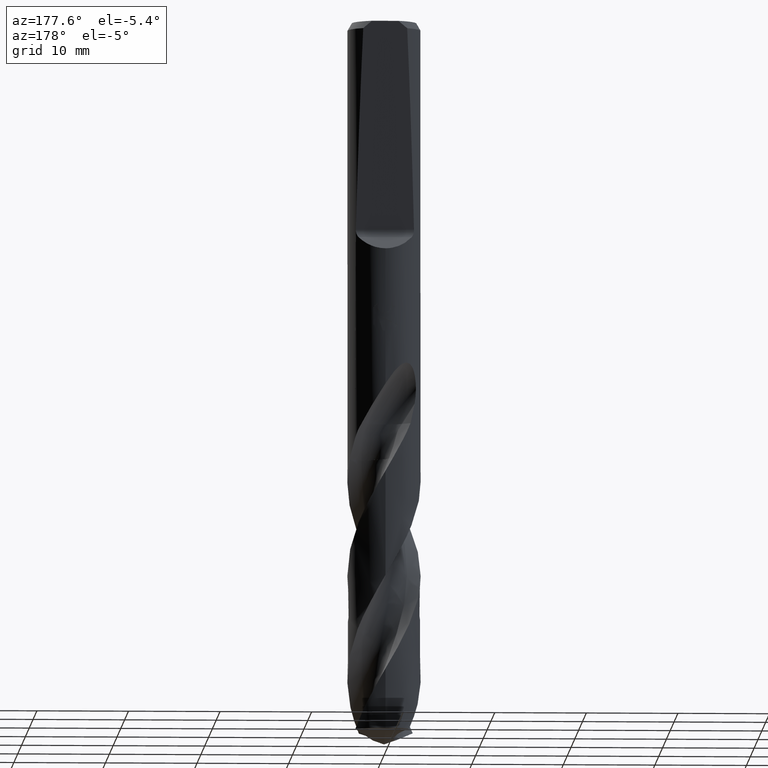
[diagram: clean part render]
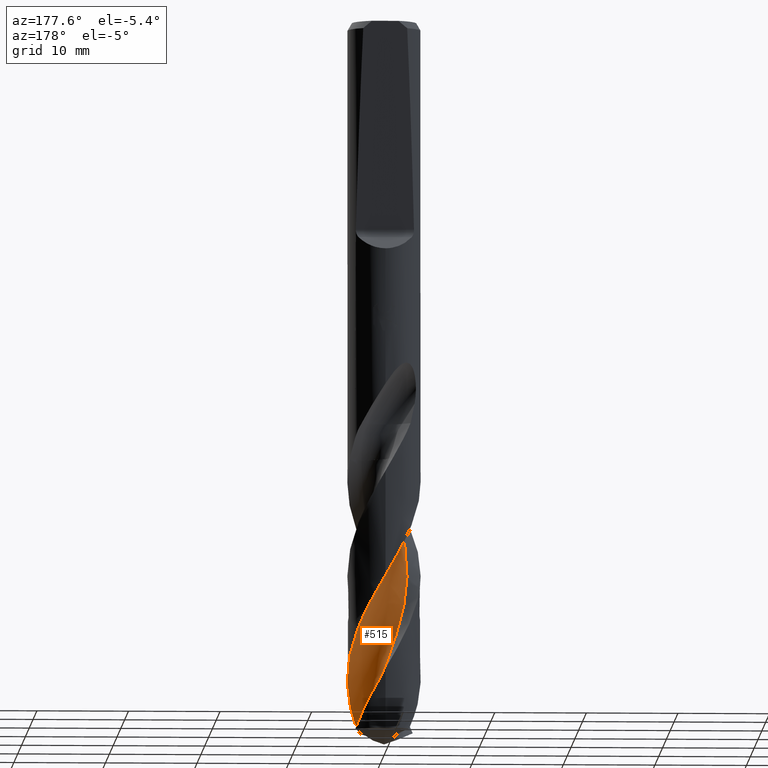
[diagram: same view with one face highlighted and labeled with its STEP entity id]
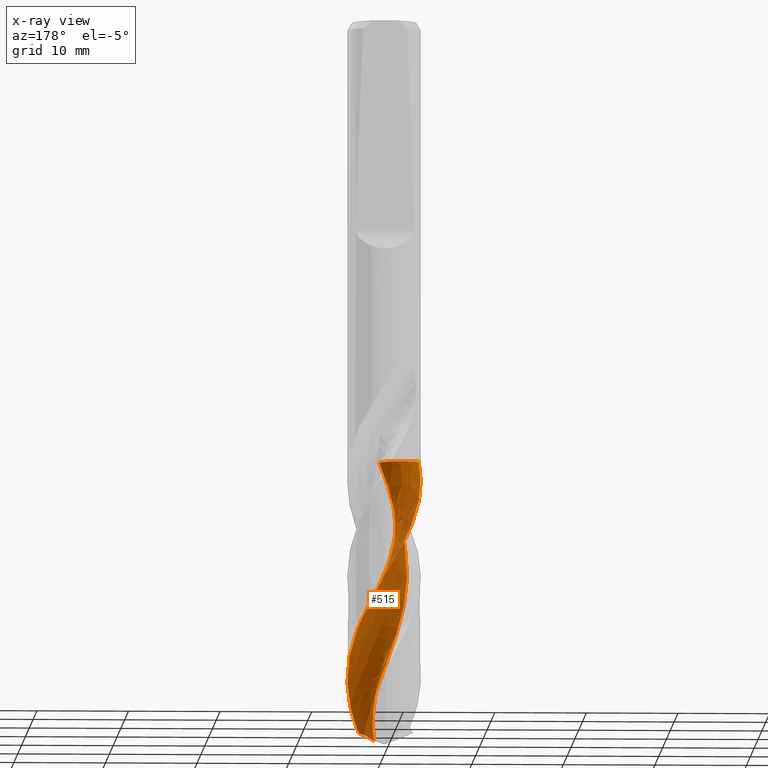
[diagram: x-ray of the same camera — body ghosted, the highlighted face saturated]
A machine part, auxiliary view. The second image highlights one B-rep face of the part: STEP entity #515.
The next image is the same camera in x-ray: the body ghosted, the highlighted face saturated — about 0% of this face is hidden behind the body in this view.
In plain terms, the highlighted face is a freeform B-spline surface patch.
Its self-contained STEP definition (entity closure, byte-faithful):
#289=EDGE_CURVE('',#501,#495,#820,.T.);
#495=VERTEX_POINT('',#1041);
#501=VERTEX_POINT('',#1048);
#515=ADVANCED_FACE('',(#1063),#1064,.F.);
#529=VERTEX_POINT('',#1079);
#531=EDGE_CURVE('',#741,#501,#1081,.T.);
#581=EDGE_CURVE('',#619,#529,#1137,.T.);
#599=EDGE_CURVE('',#495,#619,#1158,.T.);
#619=VERTEX_POINT('',#1179);
#725=EDGE_CURVE('',#529,#741,#1300,.T.);
#741=VERTEX_POINT('',#1316);
#820=B_SPLINE_CURVE_WITH_KNOTS('',3,(#1391,#1392,#1393,#1394,#1395,#1396,#1397,#1398,#1399,#1400,#1401,#1402,#1403,#1404,#1405,#1406,#1407,#1408,#1409,#1410),.UNSPECIFIED.,.F.,.F.,(4,2,2,2,2,2,2,2,2,4),(0.0,1.67084326193149,2.80818910833791,3.89072051795383,5.10747953696156,6.43539731701266,7.92770286372891,9.59178361128073,10.5946940126319,11.5968602936113),.UNSPECIFIED.);
#1041=CARTESIAN_POINT('',(2.61665020400859,-3.02541595650281,-77.5441190629352));
#1048=CARTESIAN_POINT('',(2.20358312095687,1.22999015981787,-78.0814776926935));
#1063=FACE_OUTER_BOUND('',#4596,.T.);
#1064=B_SPLINE_SURFACE_WITH_KNOTS('',3,3,((#4597,#4598,#4599,#4600,#4601,#4602,#4603,#4604,#4605,#4606,#4607,#4608,#4609,#4610,#4611,#4612,#4613,#4614,#4615,#4616,#4617,#4618,#4619,#4620,#4621,#4622,#4623,#4624,#4625,#4626,#4627,#4628,#4629,#4630,#4631,#4632,#4633,#4634,#4635,#4636,#4637,#4638,#4639,#4640,#4641,#4642),(#4643,#4644,#4645,#4646,#4647,#4648,#4649,#4650,#4651,#4652,#4653,#4654,#4655,#4656,#4657,#4658,#4659,#4660,#4661,#4662,#4663,#4664,#4665,#4666,#4667,#4668,#4669,#4670,#4671,#4672,#4673,#4674,#4675,#4676,#4677,#4678,#4679,#4680,#4681,#4682,#4683,#4684,#4685,#4686,#4687,#4688),(#4689,#4690,#4691,#4692,#4693,#4694,#4695,#4696,#4697,#4698,#4699,#4700,#4701,#4702,#4703,#4704,#4705,#4706,#4707,#4708,#4709,#4710,#4711,#4712,#4713,#4714,#4715,#4716,#4717,#4718,#4719,#4720,#4721,#4722,#4723,#4724,#4725,#4726,#4727,#4728,#4729,#4730,#4731,#4732,#4733,#4734),(#4735,#4736,#4737,#4738,#4739,#4740,#4741,#4742,#4743,#4744,#4745,#4746,#4747,#4748,#4749,#4750,#4751,#4752,#4753,#4754,#4755,#4756,#4757,#4758,#4759,#4760,#4761,#4762,#4763,#4764,#4765,#4766,#4767,#4768,#4769,#4770,#4771,#4772,#4773,#4774,#4775,#4776,#4777,#4778,#4779,#4780),(#4781,#4782,#4783,#4784,#4785,#4786,#4787,#4788,#4789,#4790,#4791,#4792,#4793,#4794,#4795,#4796,#4797,#4798,#4799,#4800,#4801,#4802,#4803,#4804,#4805,#4806,#4807,#4808,#4809,#4810,#4811,#4812,#4813,#4814,#4815,#4816,#4817,#4818,#4819,#4820,#4821,#4822,#4823,#4824,#4825,#4826),(#4827,#4828,#4829,#4830,#4831,#4832,#4833,#4834,#4835,#4836,#4837,#4838,#4839,#4840,#4841,#4842,#4843,#4844,#4845,#4846,#4847,#4848,#4849,#4850,#4851,#4852,#4853,#4854,#4855,#4856,#4857,#4858,#4859,#4860,#4861,#4862,#4863,#4864,#4865,#4866,#4867,#4868,#4869,#4870,#4871,#4872),(#4873,#4874,#4875,#4876,#4877,#4878,#4879,#4880,#4881,#4882,#4883,#4884,#4885,#4886,#4887,#4888,#4889,#4890,#4891,#4892,#4893,#4894,#4895,#4896,#4897,#4898,#4899,#4900,#4901,#4902,#4903,#4904,#4905,#4906,#4907,#4908,#4909,#4910,#4911,#4912,#4913,#4914,#4915,#4916,#4917,#4918),(#4919,#4920,#4921,#4922,#4923,#4924,#4925,#4926,#4927,#4928,#4929,#4930,#4931,#4932,#4933,#4934,#4935,#4936,#4937,#4938,#4939,#4940,#4941,#4942,#4943,#4944,#4945,#4946,#4947,#4948,#4949,#4950,#4951,#4952,#4953,#4954,#4955,#4956,#4957,#4958,#4959,#4960,#4961,#4962,#4963,#4964),(#4965,#4966,#4967,#4968,#4969,#4970,#4971,#4972,#4973,#4974,#4975,#4976,#4977,#4978,#4979,#4980,#4981,#4982,#4983,#4984,#4985,#4986,#4987,#4988,#4989,#4990,#4991,#4992,#4993,#4994,#4995,#4996,#4997,#4998,#4999,#5000,#5001,#5002,#5003,#5004,#5005,#5006,#5007,#5008,#5009,#5010),(#5011,#5012,#5013,#5014,#5015,#5016,#5017,#5018,#5019,#5020,#5021,#5022,#5023,#5024,#5025,#5026,#5027,#5028,#5029,#5030,#5031,#5032,#5033,#5034,#5035,#5036,#5037,#5038,#5039,#5040,#5041,#5042,#5043,#5044,#5045,#5046,#5047,#5048,#5049,#5050,#5051,#5052,#5053,#5054,#5055,#5056),(#5057,#5058,#5059,#5060,#5061,#5062,#5063,#5064,#5065,#5066,#5067,#5068,#5069,#5070,#5071,#5072,#5073,#5074,#5075,#5076,#5077,#5078,#5079,#5080,#5081,#5082,#5083,#5084,#5085,#5086,#5087,#5088,#5089,#5090,#5091,#5092,#5093,#5094,#5095,#5096,#5097,#5098,#5099,#5100,#5101,#5102)),.UNSPECIFIED.,.F.,.F.,.F.,(4,1,1,1,1,1,1,1,4),(4,1,2,2,2,2,2,1,2,1,2,2,2,2,2,2,2,2,2,2,2,1,2,2,4),(4.27095186761561E-018,0.39270124676232,0.785402493524641,1.17810374028696,1.57080498704928,1.9635062338116,2.35620748057392,2.74890872733624,3.14160997409856),(0.0,0.702977865865361,1.40595573173072,2.10893359759608,2.81191146346144,4.21786719519216,5.62382292692289,7.02977865865361,8.43573439038433,9.84169012211505,11.2476458538458,14.0595573173072,16.8714687807687,19.6833802442301,22.4952917076915,25.307203171153,28.1191146346144,30.9310260980759,33.7429375615373,36.5548490249988,39.3667604884602,40.7727162201909,42.1786719519216,43.5846276836524,44.9905834153831),.UNSPECIFIED.);
#1079=CARTESIAN_POINT('',(-3.82569391059703,-1.16758994139769,-47.905));
#1081=B_SPLINE_CURVE_WITH_KNOTS('',3,(#5418,#5419,#5420,#5421,#5422,#5423,#5424,#5425,#5426,#5427,#5428,#5429,#5430,#5431,#5432,#5433,#5434,#5435,#5436,#5437,#5438,#5439,#5440,#5441,#5442,#5443,#5444,#5445,#5446,#5447,#5448,#5449,#5450,#5451,#5452,#5453,#5454,#5455,#5456,#5457,#5458,#5459,#5460,#5461,#5462,#5463),.UNSPECIFIED.,.F.,.F.,(4,1,2,2,2,2,2,1,2,1,2,2,2,2,2,2,2,2,2,2,2,1,2,2,4),(0.0,0.702977865865361,1.40595573173072,2.10893359759608,2.81191146346144,4.21786719519216,5.62382292692289,7.02977865865361,8.43573439038433,9.84169012211505,11.2476458538458,14.0595573173072,16.8714687807687,19.6833802442301,22.4952917076915,25.307203171153,28.1191146346144,30.9310260980759,33.7429375615373,36.5548490249988,39.3667604884602,40.7727162201909,42.1786719519216,43.5846276836524,44.9905834153831),.UNSPECIFIED.);
#1137=B_SPLINE_CURVE_WITH_KNOTS('',3,(#6183,#6184,#6185,#6186,#6187,#6188,#6189,#6190,#6191,#6192,#6193,#6194,#6195,#6196,#6197,#6198,#6199,#6200,#6201,#6202,#6203,#6204,#6205,#6206,#6207,#6208,#6209,#6210,#6211,#6212,#6213,#6214,#6215,#6216,#6217,#6218,#6219,#6220,#6221,#6222,#6223,#6224,#6225,#6226,#6227,#6228,#6229,#6230,#6231,#6232,#6233,#6234,#6235,#6236,#6237,#6238,#6239,#6240,#6241,#6242,#6243,#6244,#6245,#6246),.UNSPECIFIED.,.F.,.F.,(4,2,2,2,2,2,2,2,2,2,2,2,2,2,2,2,2,2,2,2,2,2,2,2,2,2,2,2,2,2,2,4),(0.0,2.52909010205042,4.29207865863012,5.44875373833207,6.70753995311328,7.97154982328522,9.22953998794931,10.6848560269766,11.1351198260761,13.0307310382788,13.8024234262573,14.9611629079679,15.5902521232709,16.3625031132946,17.4790705946874,18.1126916380425,19.3737383779345,20.6117740540618,21.3844778833902,22.9876612842532,23.3074599380602,23.8332022689725,25.0718043296157,25.6539051114978,26.7417776601844,28.648037611948,28.8268233872857,30.2161029248406,30.7369443995025,31.6471362653181,33.0182852279183,34.3833889343107),.UNSPECIFIED.);
#1158=B_SPLINE_CURVE_WITH_KNOTS('',3,(#6271,#6272,#6273,#6274,#6275,#6276,#6277,#6278,#6279,#6280,#6281,#6282,#6283,#6284,#6285,#6286,#6287,#6288,#6289,#6290,#6291,#6292,#6293,#6294,#6295,#6296,#6297,#6298,#6299,#6300,#6301,#6302,#6303,#6304,#6305,#6306,#6307,#6308,#6309,#6310,#6311,#6312,#6313,#6314,#6315,#6316,#6317,#6318,#6319,#6320,#6321,#6322,#6323,#6324,#6325,#6326,#6327,#6328,#6329,#6330,#6331,#6332,#6333,#6334),.UNSPECIFIED.,.F.,.F.,(4,2,2,2,2,2,2,2,2,2,2,2,2,2,2,2,2,2,2,2,2,2,2,2,2,2,2,2,2,2,2,4),(0.0,2.52909010205042,4.29207865863012,5.44875373833207,6.70753995311328,7.97154982328522,9.22953998794931,10.6848560269766,11.1351198260761,13.0307310382788,13.8024234262573,14.9611629079679,15.5902521232709,16.3625031132946,17.4790705946874,18.1126916380425,19.3737383779345,20.6117740540618,21.3844778833902,22.9876612842532,23.3074599380602,23.8332022689725,25.0718043296157,25.6539051114978,26.7417776601844,28.648037611948,28.8268233872857,30.2161029248406,30.7369443995025,31.6471362653181,33.0182852279183,34.3833889343107),.UNSPECIFIED.);
#1179=CARTESIAN_POINT('',(1.30928036267167E-015,3.99994347768581,-60.7885769449526));
#1300=B_SPLINE_CURVE_WITH_KNOTS('',3,(#7208,#7209,#7210,#7211,#7212,#7213,#7214,#7215,#7216,#7217,#7218,#7219,#7220,#7221,#7222,#7223,#7224,#7225,#7226,#7227),.UNSPECIFIED.,.F.,.F.,(4,2,2,2,2,2,2,2,2,4),(-8.4002941091326,-7.84457266581742,-7.2887359298828,-6.24648101992052,-5.20435779613587,-4.16284039992293,-3.12204970933948,-2.08167801853926,-1.04116100357151,-0.0),.UNSPECIFIED.);
#1316=CARTESIAN_POINT('',(0.422657326759019,-2.47779074008358,-47.905));
#1391=CARTESIAN_POINT('',(2.20358312095689,1.22999015981781,-78.0814776926936));
#1392=CARTESIAN_POINT('',(1.81898130775129,0.872490279212198,-78.2671281203961));
#1393=CARTESIAN_POINT('',(1.53138995463484,0.463091847166205,-78.4319046791568));
#1394=CARTESIAN_POINT('',(1.21475248968486,-0.151829648307618,-78.5630101560411));
#1395=CARTESIAN_POINT('',(1.13151024362429,-0.377455087736269,-78.5731261467831));
#1396=CARTESIAN_POINT('',(1.03524272967952,-0.809136755104902,-78.5277341109049));
#1397=CARTESIAN_POINT('',(1.02058067331906,-1.0183113014237,-78.4770331970311));
#1398=CARTESIAN_POINT('',(1.06228092072572,-1.456036542889,-78.3457892740329));
#1399=CARTESIAN_POINT('',(1.12833008597951,-1.69257301310135,-78.2596717935924));
#1400=CARTESIAN_POINT('',(1.37642581701196,-2.17161648225629,-78.0642558568538));
#1401=CARTESIAN_POINT('',(1.55775631547481,-2.39180890522694,-77.9614671924748));
#1402=CARTESIAN_POINT('',(2.01935034067713,-2.77669727486376,-77.750753039112));
#1403=CARTESIAN_POINT('',(2.30546230659516,-2.92833083448112,-77.6449108463345));
#1404=CARTESIAN_POINT('',(2.95694739020841,-3.13158727704482,-77.4338979880455));
#1405=CARTESIAN_POINT('',(3.32226041879223,-3.16817230448955,-77.3317895464033));
#1406=CARTESIAN_POINT('',(3.9059084246713,-3.11831927816577,-77.1817678239396));
#1407=CARTESIAN_POINT('',(4.12373341849616,-3.07510323300792,-77.1287983456036));
#1408=CARTESIAN_POINT('',(4.54728129057454,-2.94272632005078,-77.0296209457599));
#1409=CARTESIAN_POINT('',(4.75230668700171,-2.853822874187,-76.9835750424502));
#1410=CARTESIAN_POINT('',(4.94673275784959,-2.74405448605119,-76.9410734336025));
#4596=EDGE_LOOP('',(#8136,#8137,#8138,#8139,#8140));
#4597=CARTESIAN_POINT('',(-1.88561808545044,-5.75228475545044,-44.053));
#4598=CARTESIAN_POINT('',(-2.03312498188773,-5.74482879904567,-44.2348408050724));
#4599=CARTESIAN_POINT('',(-2.33091479459104,-5.70352224551002,-44.6002559302624));
#4600=CARTESIAN_POINT('',(-2.62881998794688,-5.59613717229908,-44.9670420304622));
#4601=CARTESIAN_POINT('',(-2.92054639958881,-5.44908393196752,-45.3317688301162));
#4602=CARTESIAN_POINT('',(-3.06319224544501,-5.36446702266249,-45.5135976540269));
#4603=CARTESIAN_POINT('',(-3.33870217880608,-5.17209021608492,-45.8750856025189));
#4604=CARTESIAN_POINT('',(-3.47264593254263,-5.07539282571659,-46.0560178934843));
#4605=CARTESIAN_POINT('',(-3.86635391980841,-4.78669361663215,-46.6016567024877));
#4606=CARTESIAN_POINT('',(-4.11433585818997,-4.5767724596902,-46.965805749656));
#4607=CARTESIAN_POINT('',(-4.57659020754023,-4.12579101211572,-47.696169628678));
#4608=CARTESIAN_POINT('',(-4.78910718203193,-3.87994992060569,-48.0608335967442));
#4609=CARTESIAN_POINT('',(-5.16834745014622,-3.35068198180776,-48.7875758469746));
#4610=CARTESIAN_POINT('',(-5.50790022387181,-2.79468910661245,-49.5153745936671));
#4611=CARTESIAN_POINT('',(-5.7568360985835,-2.19341491767271,-50.2443393940769));
#4612=CARTESIAN_POINT('',(-5.95451196902349,-1.5743584364112,-50.972450669799));
#4613=CARTESIAN_POINT('',(-6.10474292094961,-0.941151858333246,-51.7004570354916));
#4614=CARTESIAN_POINT('',(-6.15394811949721,-0.291966720417154,-52.4288041516222));
#4615=CARTESIAN_POINT('',(-6.14638482281937,0.683031033582828,-53.5211179621671));
#4616=CARTESIAN_POINT('',(-6.04242539150446,1.33079265246671,-54.2493161457954));
#4617=CARTESIAN_POINT('',(-5.62805397429999,2.56297949481491,-55.7057083640636));
#4618=CARTESIAN_POINT('',(-5.32758471272661,3.14616768057704,-56.4339057933052));
#4619=CARTESIAN_POINT('',(-4.55016483445192,4.18807159708908,-57.8903121022172));
#4620=CARTESIAN_POINT('',(-4.08304726663603,4.64870415249326,-58.6185108006882));
#4621=CARTESIAN_POINT('',(-3.01985015831219,5.3967418205552,-60.0748990381079));
#4622=CARTESIAN_POINT('',(-2.43250865162734,5.68902909772508,-60.8031014450631));
#4623=CARTESIAN_POINT('',(-1.18918630934521,6.06873697513283,-62.2595054964205));
#4624=CARTESIAN_POINT('',(-0.540041782895762,6.16357106296285,-62.9876991970755));
#4625=CARTESIAN_POINT('',(0.759654637106628,6.13735931048493,-64.4440973222813));
#4626=CARTESIAN_POINT('',(1.4060693693191,6.02537856630139,-65.1723014748673));
#4627=CARTESIAN_POINT('',(2.6329982648436,5.59565216023875,-66.6286952077734));
#4628=CARTESIAN_POINT('',(3.21239209094686,5.28792225711691,-67.3568910681518));
#4629=CARTESIAN_POINT('',(4.24451679783806,4.49755732000146,-68.8132886251313));
#4630=CARTESIAN_POINT('',(4.69928599173433,4.024722497958,-69.5414894059192));
#4631=CARTESIAN_POINT('',(5.4339723261269,2.95224993015172,-70.9979152795162));
#4632=CARTESIAN_POINT('',(5.71890570911061,2.36133620307967,-71.7261108377838));
#4633=CARTESIAN_POINT('',(6.08326086300691,1.11350132083736,-73.1823997319792));
#4634=CARTESIAN_POINT('',(6.16997762851176,0.463139972778932,-73.9106003594025));
#4635=CARTESIAN_POINT('',(6.13756291938551,-0.51149199984497,-75.0030795424228));
#4636=CARTESIAN_POINT('',(6.06675176110767,-1.15843071793143,-75.7311806673972));
#4637=CARTESIAN_POINT('',(5.8964201729344,-1.78635810759544,-76.4593067329954));
#4638=CARTESIAN_POINT('',(5.67534956887418,-2.39691657905489,-77.1870876136053));
#4639=CARTESIAN_POINT('',(5.5404452735203,-2.69340833295784,-77.5510218294702));
#4640=CARTESIAN_POINT('',(5.22217246320841,-3.26062317215808,-78.2789484715506));
#4641=CARTESIAN_POINT('',(5.04508801695349,-3.53173751763597,-78.6424760419772));
#4642=CARTESIAN_POINT('',(4.85261798924285,-3.78941090738512,-79.006468046498));
#4643=CARTESIAN_POINT('',(-2.13243607235617,-5.50544636091594,-44.0529999999996));
#4644=CARTESIAN_POINT('',(-2.2800655178732,-5.49811294269354,-44.234844026947));
#4645=CARTESIAN_POINT('',(-2.57465295634694,-5.45353030586982,-44.6004479177773));
#4646=CARTESIAN_POINT('',(-2.86196912889758,-5.33616507726297,-44.9675751254423));
#4647=CARTESIAN_POINT('',(-3.1387501295392,-5.17644685553877,-45.3323772722252));
#4648=CARTESIAN_POINT('',(-3.27295812503618,-5.08521785075824,-45.5141796873643));
#4649=CARTESIAN_POINT('',(-3.52952389623408,-4.87956830021097,-45.8753079327987));
#4650=CARTESIAN_POINT('',(-3.65464423632483,-4.77738002613743,-46.0560838669507));
#4651=CARTESIAN_POINT('',(-4.0241376146255,-4.47476541440856,-46.6016500381834));
#4652=CARTESIAN_POINT('',(-4.25582945926658,-4.25718156010315,-46.9658068019206));
#4653=CARTESIAN_POINT('',(-4.68518692032275,-3.7935782683685,-47.6964721511884));
#4654=CARTESIAN_POINT('',(-4.88021358742747,-3.54245296603741,-48.0612143458818));
#4655=CARTESIAN_POINT('',(-5.22252750185222,-3.00532845512953,-48.7877539813431));
#4656=CARTESIAN_POINT('',(-5.52546151322209,-2.44463005193278,-49.5154972207128));
#4657=CARTESIAN_POINT('',(-5.73768665834085,-1.84437908112287,-50.2445684110823));
#4658=CARTESIAN_POINT('',(-5.89846341851209,-1.2293205664137,-50.9726674926492));
#4659=CARTESIAN_POINT('',(-6.01257157437204,-0.602985061062421,-51.7006470725972));
#4660=CARTESIAN_POINT('',(-6.02713864654002,0.0337831787019724,-52.4290147884088));
#4661=CARTESIAN_POINT('',(-5.96877492452188,0.985824736846128,-53.5213307239405));
#4662=CARTESIAN_POINT('',(-5.83417585281755,1.61338991361542,-54.2495288070856));
#4663=CARTESIAN_POINT('',(-5.36498182431937,2.79540546838833,-55.7059201971538));
#4664=CARTESIAN_POINT('',(-5.04168971713643,3.34986566656311,-56.4341174080995));
#4665=CARTESIAN_POINT('',(-4.22779904965467,4.32702779483475,-57.8905248939272));
#4666=CARTESIAN_POINT('',(-3.74793824286208,4.75325440808423,-58.6187235572058));
#4667=CARTESIAN_POINT('',(-2.67024255650402,5.42841274349983,-60.0751103997625));
#4668=CARTESIAN_POINT('',(-2.08150382271207,5.68403477661683,-60.8033133262049));
#4669=CARTESIAN_POINT('',(-0.847100126402042,5.98995829493958,-62.2597181621728));
#4670=CARTESIAN_POINT('',(-0.208047590901142,6.04951689648017,-62.98791111852));
#4671=CARTESIAN_POINT('',(1.06020767120237,5.95598654225505,-64.4443093309048));
#4672=CARTESIAN_POINT('',(1.68605085965965,5.81362483943081,-65.1725142595612));
#4673=CARTESIAN_POINT('',(2.86212537697333,5.32970148357896,-66.6289072078568));
#4674=CARTESIAN_POINT('',(3.4125073742697,4.99950811147267,-67.3571025579118));
#4675=CARTESIAN_POINT('',(4.3794395559722,4.17348262627919,-68.8135003764281));
#4676=CARTESIAN_POINT('',(4.79964580691429,3.68833449529492,-69.5417020255137));
#4677=CARTESIAN_POINT('',(5.46127298028857,2.60227369380883,-70.9981300785844));
#4678=CARTESIAN_POINT('',(5.70953241602692,2.01042271477267,-71.7263230103234));
#4679=CARTESIAN_POINT('',(6.00025163299469,0.772418751691063,-73.1826030122663));
#4680=CARTESIAN_POINT('',(6.05179701099233,0.132585363854286,-73.9108121820467));
#4681=CARTESIAN_POINT('',(5.9691130905391,-0.817790856790434,-75.0033068611247));
#4682=CARTESIAN_POINT('',(5.86656315086837,-1.44613397597699,-75.7313805309056));
#4683=CARTESIAN_POINT('',(5.66786875187671,-2.05084638083625,-76.4595085595194));
#4684=CARTESIAN_POINT('',(5.42015169575965,-2.6357966742486,-77.1872766248241));
#4685=CARTESIAN_POINT('',(5.27291560163751,-2.91841492125859,-77.5512271889302));
#4686=CARTESIAN_POINT('',(4.93207429795324,-3.4556692552365,-78.2791849538945));
#4687=CARTESIAN_POINT('',(4.74544871195076,-3.71162563609051,-78.642662630999));
#4688=CARTESIAN_POINT('',(4.5448695438247,-3.95415059414328,-79.0066720713091));
#4689=CARTESIAN_POINT('',(-2.52780940903102,-4.91372298130983,-44.0530000000001));
#4690=CARTESIAN_POINT('',(-2.67573263228331,-4.90658585824853,-44.2348493251353));
#4691=CARTESIAN_POINT('',(-2.96261386989828,-4.85672592748222,-44.6007636760211));
#4692=CARTESIAN_POINT('',(-3.22478790319223,-4.7236152001362,-44.9684518943354));
#4693=CARTESIAN_POINT('',(-3.46664800707903,-4.5445155092932,-45.3333779639604));
#4694=CARTESIAN_POINT('',(-3.58135442587822,-4.44342057970288,-45.5151369476851));
#4695=CARTESIAN_POINT('',(-3.79476159590031,-4.21876478182556,-45.8756735914076));
#4696=CARTESIAN_POINT('',(-3.90005530346426,-4.10910583095382,-46.0561923708465));
#4697=CARTESIAN_POINT('',(-4.21559601785524,-3.78829553357718,-46.6016390799392));
#4698=CARTESIAN_POINT('',(-4.41166730933084,-3.56186752676026,-46.965808526064));
#4699=CARTESIAN_POINT('',(-4.77022570435155,-3.08610766707687,-47.6969697097159));
#4700=CARTESIAN_POINT('',(-4.92817774694207,-2.83137135319195,-48.061840561269));
#4701=CARTESIAN_POINT('',(-5.19353020925868,-2.29322141345168,-48.7880469492095));
#4702=CARTESIAN_POINT('',(-5.42137089946211,-1.73767587916968,-49.5156988952152));
#4703=CARTESIAN_POINT('',(-5.5605969647015,-1.15406941092163,-50.2449450909462));
#4704=CARTESIAN_POINT('',(-5.64918084555122,-0.561678585818483,-50.9730240756719));
#4705=CARTESIAN_POINT('',(-5.69379102648683,0.0365529278059731,-51.7009596345367));
#4706=CARTESIAN_POINT('',(-5.64403418592639,0.634718281141594,-52.4293612144375));
#4707=CARTESIAN_POINT('',(-5.49321981340741,1.52065562902369,-53.5216806556957));
#4708=CARTESIAN_POINT('',(-5.30538577730014,2.09565215509482,-54.2498785386505));
#4709=CARTESIAN_POINT('',(-4.74652091789943,3.15554528668851,-55.7062686220415));
#4710=CARTESIAN_POINT('',(-4.38901680661769,3.64348579889175,-56.4344654715777));
#4711=CARTESIAN_POINT('',(-3.52794537821958,4.47668848905502,-57.8908748423808));
#4712=CARTESIAN_POINT('',(-3.03628545228013,4.82905023493915,-58.6190734184058));
#4713=CARTESIAN_POINT('',(-1.95858018973876,5.352714939158,-60.0754580762741));
#4714=CARTESIAN_POINT('',(-1.38162803170652,5.53446632182607,-60.8036617431603));
#4715=CARTESIAN_POINT('',(-0.1943992222289,5.69639885687807,-62.2600679880357));
#4716=CARTESIAN_POINT('',(0.410445796567639,5.68943452524311,-62.9882597264721));
#4717=CARTESIAN_POINT('',(1.58906180557115,5.47379834454509,-64.4446579513105));
#4718=CARTESIAN_POINT('',(2.16168919804419,5.2788680443597,-65.1728641025212));
#4719=CARTESIAN_POINT('',(3.21452415017906,4.70679658927366,-66.6292559989488));
#4720=CARTESIAN_POINT('',(3.69796183391438,4.34322265772223,-67.3574502847439));
#4721=CARTESIAN_POINT('',(4.52035549934531,3.47181582453985,-68.8138487447115));
#4722=CARTESIAN_POINT('',(4.86655385620435,2.97579065539041,-69.542051588128));
#4723=CARTESIAN_POINT('',(5.37668994380733,1.8916121254977,-70.9984834819118));
#4724=CARTESIAN_POINT('',(5.55124418707805,1.3124709063162,-71.7266720672313));
#4725=CARTESIAN_POINT('',(5.69863197538091,0.123407011158839,-73.1829372413824));
#4726=CARTESIAN_POINT('',(5.68403597095858,-0.481388531730631,-73.9111606234174));
#4727=CARTESIAN_POINT('',(5.51048040258137,-1.36327320592124,-75.0036806964411));
#4728=CARTESIAN_POINT('',(5.35186107217771,-1.94181159338842,-75.7317092872334));
#4729=CARTESIAN_POINT('',(5.10568476458715,-2.48882494333301,-76.4598404392217));
#4730=CARTESIAN_POINT('',(4.81486945160387,-3.011973329474,-77.1875875472731));
#4731=CARTESIAN_POINT('',(4.64849196293586,-3.26194649515637,-77.5515649963686));
#4732=CARTESIAN_POINT('',(4.27443734207866,-3.73031778216516,-78.2795738338364));
#4733=CARTESIAN_POINT('',(4.07476130375312,-3.95217042848825,-78.6429695571116));
#4734=CARTESIAN_POINT('',(3.86399124126914,-4.16118020033006,-79.0070076263764));
#4735=CARTESIAN_POINT('',(-2.73608997046804,-3.86666886677121,-44.0529999999999));
#4736=CARTESIAN_POINT('',(-2.88453303034997,-3.85963514991034,-44.2348526329705));
#4737=CARTESIAN_POINT('',(-3.15770447886344,-3.8068850922574,-44.6009607907596));
#4738=CARTESIAN_POINT('',(-3.37599513420188,-3.66638440587044,-44.9689992251621));
#4739=CARTESIAN_POINT('',(-3.55833137615087,-3.48046951187591,-45.3340026547958));
#4740=CARTESIAN_POINT('',(-3.64034618318919,-3.37689610431383,-45.5157345256699));
#4741=CARTESIAN_POINT('',(-3.78302726498444,-3.15067488974351,-45.8759018574477));
#4742=CARTESIAN_POINT('',(-3.85655400499226,-3.04204364403035,-46.0562601053434));
#4743=CARTESIAN_POINT('',(-4.08687464660579,-2.72698704904668,-46.6016322392259));
#4744=CARTESIAN_POINT('',(-4.22850124004847,-2.50874975262257,-46.9658096031733));
#4745=CARTESIAN_POINT('',(-4.48195840233839,-2.05678386377184,-47.6972803142986));
#4746=CARTESIAN_POINT('',(-4.58645466204699,-1.81832552152848,-48.0622314789468));
#4747=CARTESIAN_POINT('',(-4.74455493782755,-1.32293463956695,-48.7882298399365));
#4748=CARTESIAN_POINT('',(-4.87127934398361,-0.817638190466602,-49.5158247975854));
#4749=CARTESIAN_POINT('',(-4.91888836371153,-0.299005094641223,-50.2451802233291));
#4750=CARTESIAN_POINT('',(-4.92043020795807,0.220527298578324,-50.9732466892306));
#4751=CARTESIAN_POINT('',(-4.88485399688662,0.73991302498234,-51.701154754674));
#4752=CARTESIAN_POINT('',(-4.76810859030024,1.24765206721504,-52.4295774595198));
#4753=CARTESIAN_POINT('',(-4.52711110751913,1.98890185859668,-53.5218991326874));
#4754=CARTESIAN_POINT('',(-4.29567412910608,2.46048206598974,-54.2500968662532));
#4755=CARTESIAN_POINT('',(-3.68263618012592,3.29964590379811,-55.7064861248769));
#4756=CARTESIAN_POINT('',(-3.31590232732987,3.67575507288224,-56.4346827422241));
#4757=CARTESIAN_POINT('',(-2.47208180161114,4.28235536399817,-57.8910933119501));
#4758=CARTESIAN_POINT('',(-2.00647142261038,4.52557198662766,-58.6192918376846));
#4759=CARTESIAN_POINT('',(-1.01571819062219,4.83927119607396,-60.0756751011772));
#4760=CARTESIAN_POINT('',(-0.497507083137162,4.92540889215779,-60.8038792371696));
#4761=CARTESIAN_POINT('',(0.541682060711984,4.91486037716491,-62.2602863783736));
#4762=CARTESIAN_POINT('',(1.06093008392768,4.83533663443396,-62.9884773488887));
#4763=CARTESIAN_POINT('',(2.04521690728158,4.50192758357274,-64.4448755799541));
#4764=CARTESIAN_POINT('',(2.51391359296577,4.26468939343425,-65.1730825455666));
#4765=CARTESIAN_POINT('',(3.34534513041595,3.64119654535991,-66.6294736844921));
#4766=CARTESIAN_POINT('',(3.71684024685883,3.26978896768789,-67.3576673991084));
#4767=CARTESIAN_POINT('',(4.31286189449224,2.41845931224431,-68.8140661739913));
#4768=CARTESIAN_POINT('',(4.55024628526578,1.94984375274342,-69.5422698745747));
#4769=CARTESIAN_POINT('',(4.85150632168727,0.955237743644809,-70.9987040282768));
#4770=CARTESIAN_POINT('',(4.93120619254937,0.436022091082607,-71.7268899439332));
#4771=CARTESIAN_POINT('',(4.90804035185094,-0.602934347926026,-73.1831459121115));
#4772=CARTESIAN_POINT('',(4.82189037868433,-1.12120113214696,-73.9113780855607));
#4773=CARTESIAN_POINT('',(4.56171052992589,-1.85599602910089,-75.003914094247));
#4774=CARTESIAN_POINT('',(4.35397331553752,-2.33332156032983,-75.7319145002246));
#4775=CARTESIAN_POINT('',(4.07511255235459,-2.77311075435053,-76.4600476225839));
#4776=CARTESIAN_POINT('',(3.76004349275562,-3.18586515999463,-77.1877816389188));
#4777=CARTESIAN_POINT('',(3.5858772837991,-3.37960626485535,-77.5517758416622));
#4778=CARTESIAN_POINT('',(3.20533370850036,-3.7334440780054,-78.2798166296747));
#4779=CARTESIAN_POINT('',(3.00714799082682,-3.90053954922161,-78.6431611695683));
#4780=CARTESIAN_POINT('',(2.80149349666223,-4.05724940667085,-79.0072170996352));
#4781=CARTESIAN_POINT('',(-2.52782358883109,-2.81961193168118,-44.0530000000001));
#4782=CARTESIAN_POINT('',(-2.67678648698476,-2.81247481618101,-44.2348507956819));
#4783=CARTESIAN_POINT('',(-2.93618564594463,-2.76230121513769,-44.6008513292271));
#4784=CARTESIAN_POINT('',(-3.11110624938336,-2.63176628389864,-44.9686952794559));
#4785=CARTESIAN_POINT('',(-3.23584180026093,-2.46233373616475,-45.3336557510928));
#4786=CARTESIAN_POINT('',(-3.28670485551251,-2.36898115486595,-45.515402677409));
#4787=CARTESIAN_POINT('',(-3.36344376211806,-2.16837990170477,-45.8757750963564));
#4788=CARTESIAN_POINT('',(-3.40801493856937,-2.07285492170911,-46.0562224901002));
#4789=CARTESIAN_POINT('',(-3.56180440671435,-1.79572653739844,-46.6016360396001));
#4790=CARTESIAN_POINT('',(-3.65626512428005,-1.60589170759903,-46.9658090078055));
#4791=CARTESIAN_POINT('',(-3.8217273135619,-1.21612907433705,-47.6971078259679));
#4792=CARTESIAN_POINT('',(-3.88306636710098,-1.01316619570007,-48.0620143890823));
#4793=CARTESIAN_POINT('',(-3.95844166153604,-0.59832358657794,-48.7881282813718));
#4794=CARTESIAN_POINT('',(-4.01097648228835,-0.178146952073369,-49.5157548787472));
#4795=CARTESIAN_POINT('',(-3.99880686155676,0.245398227799742,-50.2450496494313));
#4796=CARTESIAN_POINT('',(-3.94781425741392,0.664308539920653,-50.9731230667401));
#4797=CARTESIAN_POINT('',(-3.86832866076399,1.08016412676603,-51.7010463996946));
#4798=CARTESIAN_POINT('',(-3.72429877296812,1.47872471040759,-52.4294573751047));
#4799=CARTESIAN_POINT('',(-3.45535282243816,2.05178897969351,-53.5217778051397));
#4800=CARTESIAN_POINT('',(-3.22320791919164,2.41113883841629,-54.2499756229054));
#4801=CARTESIAN_POINT('',(-2.64459047788721,3.02564433978297,-55.7063653419975));
#4802=CARTESIAN_POINT('',(-2.31212565734388,3.29490280962948,-56.4345621100523));
#4803=CARTESIAN_POINT('',(-1.57096031031888,3.6987516247457,-57.8909719679968));
#4804=CARTESIAN_POINT('',(-1.17118477436835,3.85110017750345,-58.619170537407));
#4805=CARTESIAN_POINT('',(-0.341115399726529,4.00409196364567,-60.0755545897199));
#4806=CARTESIAN_POINT('',(0.086236140108027,4.0243735541192,-60.803758458035));
#4807=CARTESIAN_POINT('',(0.922648632578931,3.91112607118222,-62.2601651013416));
#4808=CARTESIAN_POINT('',(1.33504796982197,3.79732292726379,-62.988356488669));
#4809=CARTESIAN_POINT('',(2.09472825289439,3.429472976302,-64.4447547356851));
#4810=CARTESIAN_POINT('',(2.45121496332682,3.19292017552503,-65.172961239347));
#4811=CARTESIAN_POINT('',(3.05841834690658,2.60664801516309,-66.6293527989145));
#4812=CARTESIAN_POINT('',(3.32349429710579,2.2708418752957,-67.3575468210114));
#4813=CARTESIAN_POINT('',(3.71805887994908,1.52469036405037,-68.8139454404513));
#4814=CARTESIAN_POINT('',(3.86540159755533,1.12303945490814,-69.5421486819434));
#4815=CARTESIAN_POINT('',(4.0079636153797,0.291121400204419,-70.9985815273995));
#4816=CARTESIAN_POINT('',(4.02296216232997,-0.136430923595174,-71.7267689400725));
#4817=CARTESIAN_POINT('',(3.89966935484676,-0.971437881378639,-73.1830300447986));
#4818=CARTESIAN_POINT('',(3.78052548833569,-1.38237995071508,-73.9112573071772));
#4819=CARTESIAN_POINT('',(3.49660439670297,-1.94813189536549,-75.0037844917467));
#4820=CARTESIAN_POINT('',(3.28222089495352,-2.31315229411201,-75.7318005403455));
#4821=CARTESIAN_POINT('',(3.01419675627135,-2.64137150714741,-76.4599325618592));
#4822=CARTESIAN_POINT('',(2.71896635451402,-2.94285369198261,-77.1876738628066));
#4823=CARTESIAN_POINT('',(2.55912348469359,-3.08166257813831,-77.551658742614));
#4824=CARTESIAN_POINT('',(2.21641516007754,-3.32720215843317,-78.2796818118144));
#4825=CARTESIAN_POINT('',(2.04056111411931,-3.44427890380769,-78.6430547799264));
#4826=CARTESIAN_POINT('',(1.85964718695189,-3.5546276538658,-79.0071007745235));
#4827=CARTESIAN_POINT('',(-1.93471727789652,-1.93195883785817,-44.0529999999999));
#4828=CARTESIAN_POINT('',(-2.08412087694691,-1.92452725979826,-44.2348440944816));
#4829=CARTESIAN_POINT('',(-2.33178197078061,-1.88200445313661,-44.6004519542507));
#4830=CARTESIAN_POINT('',(-2.47044862000322,-1.77727377975333,-44.9675863329579));
#4831=CARTESIAN_POINT('',(-2.54827592751451,-1.64511181084638,-45.332390064113));
#4832=CARTESIAN_POINT('',(-2.57426971679877,-1.57312331300195,-45.5141919246465));
#4833=CARTESIAN_POINT('',(-2.59988956579013,-1.42142695566629,-45.8753126062655));
#4834=CARTESIAN_POINT('',(-2.62272485389071,-1.34909146748538,-46.0560852535093));
#4835=CARTESIAN_POINT('',(-2.7203233533335,-1.13629151234612,-46.6016498989778));
#4836=CARTESIAN_POINT('',(-2.78207767492299,-0.990746835890292,-46.9658068254786));
#4837=CARTESIAN_POINT('',(-2.89004772695787,-0.692126767755818,-47.6964785099145));
#4838=CARTESIAN_POINT('',(-2.92509851951717,-0.538472906814573,-48.0612223513149));
#4839=CARTESIAN_POINT('',(-2.95487030303572,-0.229704931084752,-48.7877577257425));
#4840=CARTESIAN_POINT('',(-2.97143705231933,0.0834400379447531,-49.5154997951529));
#4841=CARTESIAN_POINT('',(-2.94042805052988,0.396259183817773,-50.2445732338175));
#4842=CARTESIAN_POINT('',(-2.87940656778995,0.702102731376797,-50.9726720431461));
#4843=CARTESIAN_POINT('',(-2.79897347391182,1.00550552591956,-51.7006510704228));
#4844=CARTESIAN_POINT('',(-2.6715170381516,1.29275710802656,-52.4290192196565));
#4845=CARTESIAN_POINT('',(-2.44111223347791,1.69974290307127,-53.5213351912549));
#4846=CARTESIAN_POINT('',(-2.25126219719136,1.95513463194022,-54.2495332577536));
#4847=CARTESIAN_POINT('',(-1.7904185656026,2.37525528427275,-55.7059246709522));
#4848=CARTESIAN_POINT('',(-1.53050437547645,2.55891094070707,-56.4341218659176));
#4849=CARTESIAN_POINT('',(-0.961769959187255,2.81472662145679,-57.8905293587331));
#4850=CARTESIAN_POINT('',(-0.657591716167244,2.90831811355097,-58.6187280189205));
#4851=CARTESIAN_POINT('',(-0.0374750903558101,2.97432712353601,-60.0751148546067));
#4852=CARTESIAN_POINT('',(0.280731071514893,2.96853627576554,-60.8033177714612));
#4853=CARTESIAN_POINT('',(0.89050114010793,2.838007038737,-62.2597226424902));
#4854=CARTESIAN_POINT('',(1.19106705623582,2.73342333355038,-62.987915564202));
#4855=CARTESIAN_POINT('',(1.73005808735856,2.41970775954222,-64.4443137978319));
#4856=CARTESIAN_POINT('',(1.98313869245047,2.22672930521678,-65.1725186736785));
#4857=CARTESIAN_POINT('',(2.39742629546956,1.76065335774681,-66.6289117243075));
#4858=CARTESIAN_POINT('',(2.57780798105456,1.49846369123077,-67.3571069914182));
#4859=CARTESIAN_POINT('',(2.82650081896797,0.926578665303598,-68.813504841035));
#4860=CARTESIAN_POINT('',(2.91628234843052,0.621252597693184,-69.5417064575519));
#4861=CARTESIAN_POINT('',(2.97448492804497,0.000369882333707515,-70.9981346324899));
#4862=CARTESIAN_POINT('',(2.96478551230869,-0.317736396934634,-71.7263274940618));
#4863=CARTESIAN_POINT('',(2.82703600817682,-0.926001666089579,-73.1826072629125));
#4864=CARTESIAN_POINT('',(2.71848137535541,-1.22516244367232,-73.9108166762027));
#4865=CARTESIAN_POINT('',(2.47731652880405,-1.62565380333248,-75.0033116197955));
#4866=CARTESIAN_POINT('',(2.29977017111725,-1.88437441302991,-75.7313847550687));
#4867=CARTESIAN_POINT('',(2.08445395141588,-2.11366353062132,-76.4595127785067));
#4868=CARTESIAN_POINT('',(1.85013431458629,-2.31993561679703,-77.1872806227242));
#4869=CARTESIAN_POINT('',(1.72454622793102,-2.41347515745338,-77.55123150395));
#4870=CARTESIAN_POINT('',(1.45823721740255,-2.57343934298285,-78.2791899280457));
#4871=CARTESIAN_POINT('',(1.32215637886725,-2.65285079479838,-78.6426665559671));
#4872=CARTESIAN_POINT('',(1.18184143563729,-2.72983538038083,-79.0066763606828));
#4873=CARTESIAN_POINT('',(-1.04706707980335,-1.3388481931497,-44.053));
#4874=CARTESIAN_POINT('',(-1.19676514436157,-1.33097591425993,-44.2348335484493));
#4875=CARTESIAN_POINT('',(-1.43650943987435,-1.30001346912838,-44.5998234690108));
#4876=CARTESIAN_POINT('',(-1.55155762003652,-1.23299704712506,-44.9658412130923));
#4877=CARTESIAN_POINT('',(-1.60031057271791,-1.15321972013804,-45.3303982867869));
#4878=CARTESIAN_POINT('',(-1.61150373832293,-1.11048604210617,-45.5122865966914));
#4879=CARTESIAN_POINT('',(-1.60861014692831,-1.02353410163758,-45.8745847966963));
#4880=CARTESIAN_POINT('',(-1.62023834520809,-0.980940900297671,-46.0558692873896));
#4881=CARTESIAN_POINT('',(-1.69054075068984,-0.849076082119685,-46.6016717102449));
#4882=CARTESIAN_POINT('',(-1.739027458443,-0.756966392627209,-46.9658033817585));
#4883=CARTESIAN_POINT('',(-1.82876095451256,-0.564552408047574,-47.6954881815221));
#4884=CARTESIAN_POINT('',(-1.85839462210902,-0.466514200826185,-48.0599759425358));
#4885=CARTESIAN_POINT('',(-1.88662717265066,-0.273198123451288,-48.7871745923888));
#4886=CARTESIAN_POINT('',(-1.9109232306577,-0.0727019077103835,-49.5150983765574));
#4887=CARTESIAN_POINT('',(-1.90488226034286,0.130610312985622,-50.2438235119114));
#4888=CARTESIAN_POINT('',(-1.87786429896518,0.328155984720708,-50.9719622787804));
#4889=CARTESIAN_POINT('',(-1.83958983654743,0.527303444791687,-51.7000289628332));
#4890=CARTESIAN_POINT('',(-1.77004161268384,0.718061445569715,-52.4283296837265));
#4891=CARTESIAN_POINT('',(-1.63879994353805,0.986360044604028,-53.5206387064528));
#4892=CARTESIAN_POINT('',(-1.52780850300919,1.16189269442137,-54.2488371335401));
#4893=CARTESIAN_POINT('',(-1.25016178540045,1.44749566743842,-55.7052311847255));
#4894=CARTESIAN_POINT('',(-1.09003454122858,1.57982877711395,-56.4334290983075));
#4895=CARTESIAN_POINT('',(-0.737255456774436,1.764866610922,-57.8898328035634));
#4896=CARTESIAN_POINT('',(-0.543882982298415,1.8407574077961,-58.618031611129));
#4897=CARTESIAN_POINT('',(-0.151024254406199,1.90675071633678,-60.0744228835029));
#4898=CARTESIAN_POINT('',(0.0563672962546476,1.91864044350769,-60.8026242002205));
#4899=CARTESIAN_POINT('',(0.450133803209645,1.85887772053333,-62.2590264313815));
#4900=CARTESIAN_POINT('',(0.650907357058104,1.80560866225513,-62.9872217618984));
#4901=CARTESIAN_POINT('',(1.00672475551801,1.62636123012057,-64.4436198369883));
#4902=CARTESIAN_POINT('',(1.18094593412496,1.51321217733772,-65.1718222292211));
#4903=CARTESIAN_POINT('',(1.46300011030752,1.2320090002979,-66.6282176077002));
#4904=CARTESIAN_POINT('',(1.59330652036581,1.07024327663551,-67.3564147652434));
#4905=CARTESIAN_POINT('',(1.77392081766671,0.715182287000639,-68.8128115596256));
#4906=CARTESIAN_POINT('',(1.8473849032408,0.520876520861951,-69.5410105722641));
#4907=CARTESIAN_POINT('',(1.90840974317419,0.127247946793317,-70.9974313345188));
#4908=CARTESIAN_POINT('',(1.91777580848282,-0.0802919208615109,-71.7256328137617));
#4909=CARTESIAN_POINT('',(1.85344078290971,-0.473543022107413,-73.1819419308843));
#4910=CARTESIAN_POINT('',(1.79744640076642,-0.673483800907064,-73.9101232099251));
#4911=CARTESIAN_POINT('',(1.65902594708869,-0.937656659059403,-75.0025675024023));
#4912=CARTESIAN_POINT('',(1.55619198561061,-1.11226617679038,-75.7307304327738));
#4913=CARTESIAN_POINT('',(1.42743060488404,-1.27032644216039,-76.4588521724112));
#4914=CARTESIAN_POINT('',(1.28582060224886,-1.41194560963855,-77.1866617955845));
#4915=CARTESIAN_POINT('',(1.20920370863199,-1.47677058771448,-77.5505591888261));
#4916=CARTESIAN_POINT('',(1.04622686541735,-1.58691043645709,-78.2784158447942));
#4917=CARTESIAN_POINT('',(0.961305570075488,-1.64674429410352,-78.642055675174));
#4918=CARTESIAN_POINT('',(0.871267147206985,-1.70844109983412,-79.0060084719582));
#4919=CARTESIAN_POINT('',(-1.11615427507705E-005,-1.1305766994747,-44.0530000000001));
#4920=CARTESIAN_POINT('',(-0.149812626770017,-1.1221845830177,-44.2348207632236));
#4921=CARTESIAN_POINT('',(-0.386666662865908,-1.10493207484834,-44.599061556792));
#4922=CARTESIAN_POINT('',(-0.49432759850094,-1.08179818692681,-44.9637255992202));
#4923=CARTESIAN_POINT('',(-0.536266437290277,-1.06154439059226,-45.3279836546668));
#4924=CARTESIAN_POINT('',(-0.544980908088661,-1.05150243683507,-45.5099767650135));
#4925=CARTESIAN_POINT('',(-0.540520453803734,-1.03527758171585,-45.87370247186));
#4926=CARTESIAN_POINT('',(-0.553176560038847,-1.02445142374424,-46.0556074704377));
#4927=CARTESIAN_POINT('',(-0.629233365577995,-0.977806654319519,-46.6016981538883));
#4928=CARTESIAN_POINT('',(-0.685911140282314,-0.940141715667261,-46.9657992154833));
#4929=CARTESIAN_POINT('',(-0.799440048524252,-0.852828249206462,-47.6942875963975));
#4930=CARTESIAN_POINT('',(-0.845352447631212,-0.808245261812254,-48.0584649113151));
#4931=CARTESIAN_POINT('',(-0.916344367028169,-0.72218164317775,-48.7864676669737));
#4932=CARTESIAN_POINT('',(-0.990890393287835,-0.622801335917786,-49.5146117351983));
#4933=CARTESIAN_POINT('',(-1.04982366699971,-0.511105313349959,-50.2429146169249));
#4934=CARTESIAN_POINT('',(-1.09566484127537,-0.400601076722179,-50.9711018363999));
#4935=CARTESIAN_POINT('',(-1.13623680446619,-0.281639397812859,-51.6992747672857));
#4936=CARTESIAN_POINT('',(-1.15711544457346,-0.1578691098884,-52.4274937794796));
#4937=CARTESIAN_POINT('',(-1.17056207014384,0.020247640233836,-53.5197943145494));
#4938=CARTESIAN_POINT('',(-1.16298728067481,0.152178240241091,-54.2479932289762));
#4939=CARTESIAN_POINT('',(-1.10607025146758,0.383610012458351,-55.7043904624988));
#4940=CARTESIAN_POINT('',(-1.05777438996314,0.506714334224026,-56.4325892409555));
#4941=CARTESIAN_POINT('',(-0.931597506801868,0.709004993478667,-57.8889883828517));
#4942=CARTESIAN_POINT('',(-0.847369883219885,0.81094626095083,-58.6171873427773));
#4943=CARTESIAN_POINT('',(-0.664475874741387,0.963893349792801,-60.0735840180635));
#4944=CARTESIAN_POINT('',(-0.552697474110826,1.03452491210334,-60.8017834713586));
#4945=CARTESIAN_POINT('',(-0.331410702144961,1.12280331005297,-62.2581823250623));
#4946=CARTESIAN_POINT('',(-0.203195816887982,1.15513182838288,-62.986380686008));
#4947=CARTESIAN_POINT('',(0.0348504006304931,1.17021451556365,-64.4427785255688));
#4948=CARTESIAN_POINT('',(0.166764595382135,1.16099648676745,-65.170977962912));
#4949=CARTESIAN_POINT('',(0.397399253749418,1.10119713220491,-66.6273760947779));
#4950=CARTESIAN_POINT('',(0.51987298156064,1.05137397776262,-67.3555755661156));
#4951=CARTESIAN_POINT('',(0.720566371515058,0.922684801352736,-68.8119711058646));
#4952=CARTESIAN_POINT('',(0.821440975220966,0.837192720256349,-69.540166921124));
#4953=CARTESIAN_POINT('',(0.972040114686169,0.652439366445558,-70.996578753727));
#4954=CARTESIAN_POINT('',(1.04133252275426,0.539753344106457,-71.7247907218078));
#4955=CARTESIAN_POINT('',(1.12710633905588,0.317054571824276,-73.1811352778862));
#4956=CARTESIAN_POINT('',(1.15764131664491,0.188666978078748,-73.9092824527049));
#4957=CARTESIAN_POINT('',(1.16631133067868,0.0111170753577542,-75.0016654412961));
#4958=CARTESIAN_POINT('',(1.16469061482888,-0.114375343989675,-75.7299371799831));
#4959=CARTESIAN_POINT('',(1.14315364199257,-0.239752073823508,-76.4580513189665));
#4960=CARTESIAN_POINT('',(1.11193781178552,-0.357118415016279,-77.1859115902417));
#4961=CARTESIAN_POINT('',(1.09155301589113,-0.414155195245245,-77.5497441882843));
#4962=CARTESIAN_POINT('',(1.04310961989547,-0.517807162075538,-78.2774773744333));
#4963=CARTESIAN_POINT('',(1.01294555717819,-0.579131663105506,-78.641315128894));
#4964=CARTESIAN_POINT('',(0.975206956352778,-0.645944525001009,-79.005198789474));
#4965=CARTESIAN_POINT('',(1.04705631138526,-1.33883980757821,-44.053));
#4966=CARTESIAN_POINT('',(0.897358243514657,-1.32992784833995,-44.2348076855083));
#4967=CARTESIAN_POINT('',(0.657928076153026,-1.32644778287641,-44.5982822029369));
#4968=CARTESIAN_POINT('',(0.540299001956898,-1.34668444588886,-44.9615615568649));
#4969=CARTESIAN_POINT('',(0.481877274985561,-1.38403180308635,-45.325513747686));
#4970=CARTESIAN_POINT('',(0.462942534726682,-1.40514182339913,-45.5076140576773));
#4971=CARTESIAN_POINT('',(0.441785397062093,-1.45485999844923,-45.8727999499817));
#4972=CARTESIAN_POINT('',(0.416023148735552,-1.47298978105534,-46.0553396588794));
#4973=CARTESIAN_POINT('',(0.302038213226287,-1.50287706626205,-46.6017252053975));
#4974=CARTESIAN_POINT('',(0.216958095348852,-1.51237864552858,-46.965794954029));
#4975=CARTESIAN_POINT('',(0.0412251242029921,-1.51306099786912,-47.693059528093));
#4976=CARTESIAN_POINT('',(-0.0401832815726591,-1.51163549680468,-48.0569192905276));
#4977=CARTESIAN_POINT('',(-0.191722994242939,-1.50829838043435,-48.7857445591548));
#4978=CARTESIAN_POINT('',(-0.351389214055423,-1.48310879671014,-49.5141139550241));
#4979=CARTESIAN_POINT('',(-0.505411163298657,-1.43119220419658,-50.2419849139647));
#4980=CARTESIAN_POINT('',(-0.651875007658166,-1.37322338837949,-50.9702216995091));
#4981=CARTESIAN_POINT('',(-0.795977756775805,-1.29817205560747,-51.6985033101083));
#4982=CARTESIAN_POINT('',(-0.926035724965358,-1.20168696072765,-52.4266387323018));
#4983=CARTESIAN_POINT('',(-1.1076692002949,-1.05151973206304,-53.5189306093373));
#4984=CARTESIAN_POINT('',(-1.21232572587035,-0.920297599510606,-54.2471300043961));
#4985=CARTESIAN_POINT('',(-1.38006921332481,-0.654446121501643,-55.7035304969452));
#4986=CARTESIAN_POINT('',(-1.4386251252467,-0.497072969997399,-56.431730171734));
#4987=CARTESIAN_POINT('',(-1.51520200360115,-0.192127227475492,-57.8881246186533));
#4988=CARTESIAN_POINT('',(-1.52184357142021,-0.02435098031546,-58.6163237561637));
#4989=CARTESIAN_POINT('',(-1.49965914866647,0.289280609360485,-60.0727259417204));
#4990=CARTESIAN_POINT('',(-1.45373789231681,0.450772202486362,-60.8009234543237));
#4991=CARTESIAN_POINT('',(-1.33515195006525,0.741828548040505,-62.2573189387955));
#4992=CARTESIAN_POINT('',(-1.24121727829287,0.881006501587955,-62.9855203345814));
#4993=CARTESIAN_POINT('',(-1.03761338290279,1.12069755580302,-64.4419179776073));
#4994=CARTESIAN_POINT('',(-0.905014323504127,1.22369048852784,-65.1701143900199));
#4995=CARTESIAN_POINT('',(-0.637159726549558,1.38812140979358,-66.6265152987156));
#4996=CARTESIAN_POINT('',(-0.47908476365154,1.44471854960191,-67.354717223349));
#4997=CARTESIAN_POINT('',(-0.173213299515439,1.51748869078947,-68.8111113462616));
#4998=CARTESIAN_POINT('',(-0.00537388510198336,1.52203940033959,-69.5393039849177));
#4999=CARTESIAN_POINT('',(0.307913876311107,1.49598625152254,-70.9957066289969));
#5000=CARTESIAN_POINT('',(0.468870087264087,1.44800256644169,-71.7239292888106));
#5001=CARTESIAN_POINT('',(0.758594680546929,1.32543263992212,-73.180310223963));
#5002=CARTESIAN_POINT('',(0.896455163480708,1.23003973761712,-73.9084224958415));
#5003=CARTESIAN_POINT('',(1.07416952269091,1.07623204672089,-75.0007427076085));
#5004=CARTESIAN_POINT('',(1.1848548564598,0.957386608456084,-75.7291258050596));
#5005=CARTESIAN_POINT('',(1.27488889224747,0.82117368879023,-76.457232083165));
#5006=CARTESIAN_POINT('',(1.35494637289695,0.683969099896219,-77.1851442614382));
#5007=CARTESIAN_POINT('',(1.38949434908207,0.612609070561006,-77.5489104892013));
#5008=CARTESIAN_POINT('',(1.4493503018679,0.471121934891549,-78.2765174633331));
#5009=CARTESIAN_POINT('',(1.46920553833844,0.387465974756872,-78.640557641182));
#5010=CARTESIAN_POINT('',(1.47782855962351,0.295912498672045,-79.004370572283));
#5011=CARTESIAN_POINT('',(1.63877969091478,-1.73423059764441,-44.053));
#5012=CARTESIAN_POINT('',(1.48927792480732,-1.72502486195136,-44.2348000999895));
#5013=CARTESIAN_POINT('',(1.24474757495805,-1.72936951020594,-44.5978301483));
#5014=CARTESIAN_POINT('',(1.10991474593747,-1.77377428298867,-44.9603063339277));
#5015=CARTESIAN_POINT('',(1.02664647514668,-1.84239140591522,-45.3240811093081));
#5016=CARTESIAN_POINT('',(0.99346986863749,-1.88007941363801,-45.5062436003897));
#5017=CARTESIAN_POINT('',(0.939712292860082,-1.96387365158352,-45.8722764540433));
#5018=CARTESIAN_POINT('',(0.89849115521803,-1.99649280803461,-46.0551843195542));
#5019=CARTESIAN_POINT('',(0.741622612914256,-2.06383750330321,-46.6017408937819));
#5020=CARTESIAN_POINT('',(0.62701727471296,-2.09514138214206,-46.9657924791057));
#5021=CARTESIAN_POINT('',(0.390525219017116,-2.13414821900897,-47.6923472063607));
#5022=CARTESIAN_POINT('',(0.276245520900764,-2.15024640152008,-48.0560227867586));
#5023=CARTESIAN_POINT('',(0.0539938818536516,-2.17730830889381,-48.7853251167617));
#5024=CARTESIAN_POINT('',(-0.177022715425771,-2.17609454328771,-49.5138252250258));
#5025=CARTESIAN_POINT('',(-0.404857744418892,-2.13673519291616,-50.2414456635446));
#5026=CARTESIAN_POINT('',(-0.626694753121471,-2.08545036701894,-50.9697111761517));
#5027=CARTESIAN_POINT('',(-0.845761216231682,-2.0110291939413,-51.6980558408128));
#5028=CARTESIAN_POINT('',(-1.05002028687223,-1.90349432056317,-52.4261427764103));
#5029=CARTESIAN_POINT('',(-1.34236518556599,-1.72763241676048,-53.5184296225545));
#5030=CARTESIAN_POINT('',(-1.51632217820721,-1.5682141095815,-54.24662927903));
#5031=CARTESIAN_POINT('',(-1.81364571406191,-1.22384915816884,-55.7030317085553));
#5032=CARTESIAN_POINT('',(-1.92926559838401,-1.018110861222,-56.4312318659644));
#5033=CARTESIAN_POINT('',(-2.10452263214116,-0.598216490018305,-57.8876236175741));
#5034=CARTESIAN_POINT('',(-2.15033181125612,-0.366711978506512,-58.615822849548));
#5035=CARTESIAN_POINT('',(-2.18612942729443,0.0868803419882588,-60.0722282204026));
#5036=CARTESIAN_POINT('',(-2.15758722475681,0.321131270845671,-60.8004246344819));
#5037=CARTESIAN_POINT('',(-2.05051870174181,0.763273147432604,-62.2568181212389));
#5038=CARTESIAN_POINT('',(-1.95043663811929,0.977001886698937,-62.9850213154555));
#5039=CARTESIAN_POINT('',(-1.71074249911203,1.36380898783443,-64.4414188116962));
#5040=CARTESIAN_POINT('',(-1.54909435064755,1.53573437972347,-65.1696134324157));
#5041=CARTESIAN_POINT('',(-1.20111146282899,1.82876603130869,-66.6260160588092));
#5042=CARTESIAN_POINT('',(-0.993960850926867,1.94182143577096,-67.3542193195688));
#5043=CARTESIAN_POINT('',(-0.571917167058334,2.11183090723485,-68.8106126873778));
#5044=CARTESIAN_POINT('',(-0.339864490487466,2.1547520127775,-69.5388034052253));
#5045=CARTESIAN_POINT('',(0.114105638572676,2.18493208910736,-70.995200809433));
#5046=CARTESIAN_POINT('',(0.348021584911506,2.15341119412127,-71.7234296412547));
#5047=CARTESIAN_POINT('',(0.788897854921961,2.04047546359849,-73.1798316469817));
#5048=CARTESIAN_POINT('',(1.00127435660765,1.93802200627604,-73.9079237393738));
#5049=CARTESIAN_POINT('',(1.28915485796377,1.75570973774792,-75.0002074629871));
#5050=CARTESIAN_POINT('',(1.47070168377313,1.61230639166075,-75.7286551487628));
#5051=CARTESIAN_POINT('',(1.62668423048958,1.44095576851501,-76.4567569792136));
#5052=CARTESIAN_POINT('',(1.77021023655038,1.26314534843069,-77.1846990994964));
#5053=CARTESIAN_POINT('',(1.8349354218492,1.16894960939303,-77.5484268586656));
#5054=CARTESIAN_POINT('',(1.95183701449165,0.976531635210507,-78.2759607338981));
#5055=CARTESIAN_POINT('',(1.99680028888698,0.866361486258265,-78.6401182116279));
#5056=CARTESIAN_POINT('',(2.02766413698856,0.747743265479279,-79.0038901758097));
#5057=CARTESIAN_POINT('',(1.88561808545044,-1.98104858454956,-44.053));
#5058=CARTESIAN_POINT('',(1.73623885888752,-1.9717202984146,-44.2347968781145));
#5059=CARTESIAN_POINT('',(1.48850640453377,-1.97934129890628,-44.5976381465282));
#5060=CARTESIAN_POINT('',(1.34308538093312,-2.03372709845673,-44.9597731995575));
#5061=CARTESIAN_POINT('',(1.24487274528938,-2.11501044235158,-45.3234726223603));
#5062=CARTESIAN_POINT('',(1.20325883680702,-2.15931123973567,-45.5056615230742));
#5063=CARTESIAN_POINT('',(1.13055819405196,-2.25637979087192,-45.8720541083911));
#5064=CARTESIAN_POINT('',(1.08051409732625,-2.29449055621402,-46.0551183416446));
#5065=CARTESIAN_POINT('',(0.899432098454066,-2.37575266469151,-46.6017475577295));
#5066=CARTESIAN_POINT('',(0.768537289510886,-2.41472058521881,-46.9657914292633));
#5067=CARTESIAN_POINT('',(0.499149408014364,-2.46635197969061,-47.692044659029));
#5068=CARTESIAN_POINT('',(0.367379833439852,-2.48773582316836,-48.0556420006557));
#5069=CARTESIAN_POINT('',(0.108202483647931,-2.52265735391516,-48.78514697812));
#5070=CARTESIAN_POINT('',(-0.15943248359111,-2.52615214672924,-49.5137025897217));
#5071=CARTESIAN_POINT('',(-0.423978322790434,-2.48577260857971,-50.2412166191918));
#5072=CARTESIAN_POINT('',(-0.682714779580179,-2.43049287284197,-50.9694943477487));
#5073=CARTESIAN_POINT('',(-0.937904603626066,-2.34920360869188,-51.697865784489));
#5074=CARTESIAN_POINT('',(-1.1768028216695,-2.22925470423179,-52.4259321240306));
#5075=CARTESIAN_POINT('',(-1.51995005819169,-2.03044080142224,-53.518216845188));
#5076=CARTESIAN_POINT('',(-1.72454834375357,-1.85082858751029,-54.2464166238739));
#5077=CARTESIAN_POINT('',(-2.07669865369667,-1.45629688182756,-55.7028198380098));
#5078=CARTESIAN_POINT('',(-2.21514374693654,-1.22183248267953,-56.4310202355119));
#5079=CARTESIAN_POINT('',(-2.42687693140597,-0.737199341806457,-57.8874108102058));
#5080=CARTESIAN_POINT('',(-2.48543218938004,-0.471289962316003,-58.6156100991784));
#5081=CARTESIAN_POINT('',(-2.53573440969725,0.0551805357040618,-60.0720168213067));
#5082=CARTESIAN_POINT('',(-2.50859246981902,0.326096569092141,-60.8002127376772));
#5083=CARTESIAN_POINT('',(-2.39261139246081,0.842023545785118,-62.2566054398237));
#5084=CARTESIAN_POINT('',(-2.28244026034648,1.09102859564631,-62.9848093347771));
#5085=CARTESIAN_POINT('',(-2.01131052654686,1.54515691389739,-64.4412068310178));
#5086=CARTESIAN_POINT('',(-1.82909335705526,1.74746496160838,-65.169400675639));
#5087=CARTESIAN_POINT('',(-1.4302605534982,2.0946977584696,-66.6258039994641));
#5088=CARTESIAN_POINT('',(-1.1940999826621,2.23021904377177,-67.3540078577865));
#5089=CARTESIAN_POINT('',(-0.706866715894312,2.43589443571627,-68.8104008768797));
#5090=CARTESIAN_POINT('',(-0.440252129255379,2.49113172368501,-69.5385908570445));
#5091=CARTESIAN_POINT('',(0.0867760601888527,2.53490605993936,-70.9949859074207));
#5092=CARTESIAN_POINT('',(0.357365867691993,2.5043254653903,-71.7232174097975));
#5093=CARTESIAN_POINT('',(0.871878881036235,2.38156488554098,-73.179628394956));
#5094=CARTESIAN_POINT('',(1.11942762921083,2.26858638812176,-73.907711856747));
#5095=CARTESIAN_POINT('',(1.45757936880444,2.06202251951179,-74.9999801496868));
#5096=CARTESIAN_POINT('',(1.67086650451078,1.90002620114363,-75.728455259194));
#5097=CARTESIAN_POINT('',(1.85521377910072,1.7054629369673,-76.4565551382638));
#5098=CARTESIAN_POINT('',(2.02538836220519,1.50204654282863,-77.1845100738517));
#5099=CARTESIAN_POINT('',(2.10244648559884,1.39397831743913,-77.5482214829009));
#5100=CARTESIAN_POINT('',(2.24191905621365,1.17160170148426,-78.2757242352495));
#5101=CARTESIAN_POINT('',(2.29642471631548,1.04627438116733,-78.6399316075477));
#5102=CARTESIAN_POINT('',(2.33539896075418,0.912508396155764,-79.0036861359402));
#5418=CARTESIAN_POINT('',(1.88561808545044,-1.98104858454956,-44.053));
#5419=CARTESIAN_POINT('',(1.73623885888752,-1.9717202984146,-44.2347968781145));
#5420=CARTESIAN_POINT('',(1.48850640453377,-1.97934129890628,-44.5976381465282));
#5421=CARTESIAN_POINT('',(1.34308538093312,-2.03372709845673,-44.9597731995575));
#5422=CARTESIAN_POINT('',(1.24487274528938,-2.11501044235158,-45.3234726223603));
#5423=CARTESIAN_POINT('',(1.20325883680702,-2.15931123973567,-45.5056615230742));
#5424=CARTESIAN_POINT('',(1.13055819405196,-2.25637979087192,-45.8720541083911));
#5425=CARTESIAN_POINT('',(1.08051409732625,-2.29449055621402,-46.0551183416446));
#5426=CARTESIAN_POINT('',(0.899432098454066,-2.37575266469151,-46.6017475577295));
#5427=CARTESIAN_POINT('',(0.768537289510886,-2.41472058521881,-46.9657914292633));
#5428=CARTESIAN_POINT('',(0.499149408014364,-2.46635197969061,-47.692044659029));
#5429=CARTESIAN_POINT('',(0.367379833439852,-2.48773582316836,-48.0556420006557));
#5430=CARTESIAN_POINT('',(0.108202483647931,-2.52265735391516,-48.78514697812));
#5431=CARTESIAN_POINT('',(-0.15943248359111,-2.52615214672924,-49.5137025897217));
#5432=CARTESIAN_POINT('',(-0.423978322790434,-2.48577260857971,-50.2412166191918));
#5433=CARTESIAN_POINT('',(-0.682714779580179,-2.43049287284197,-50.9694943477487));
#5434=CARTESIAN_POINT('',(-0.937904603626066,-2.34920360869188,-51.697865784489));
#5435=CARTESIAN_POINT('',(-1.1768028216695,-2.22925470423179,-52.4259321240306));
#5436=CARTESIAN_POINT('',(-1.51995005819169,-2.03044080142224,-53.518216845188));
#5437=CARTESIAN_POINT('',(-1.72454834375357,-1.85082858751029,-54.2464166238739));
#5438=CARTESIAN_POINT('',(-2.07669865369667,-1.45629688182756,-55.7028198380098));
#5439=CARTESIAN_POINT('',(-2.21514374693654,-1.22183248267953,-56.4310202355119));
#5440=CARTESIAN_POINT('',(-2.42687693140597,-0.737199341806457,-57.8874108102058));
#5441=CARTESIAN_POINT('',(-2.48543218938004,-0.471289962316003,-58.6156100991784));
#5442=CARTESIAN_POINT('',(-2.53573440969725,0.0551805357040618,-60.0720168213067));
#5443=CARTESIAN_POINT('',(-2.50859246981902,0.326096569092141,-60.8002127376772));
#5444=CARTESIAN_POINT('',(-2.39261139246081,0.842023545785118,-62.2566054398237));
#5445=CARTESIAN_POINT('',(-2.28244026034648,1.09102859564631,-62.9848093347771));
#5446=CARTESIAN_POINT('',(-2.01131052654686,1.54515691389739,-64.4412068310178));
#5447=CARTESIAN_POINT('',(-1.82909335705526,1.74746496160838,-65.169400675639));
#5448=CARTESIAN_POINT('',(-1.4302605534982,2.0946977584696,-66.6258039994641));
#5449=CARTESIAN_POINT('',(-1.1940999826621,2.23021904377177,-67.3540078577865));
#5450=CARTESIAN_POINT('',(-0.706866715894312,2.43589443571627,-68.8104008768797));
#5451=CARTESIAN_POINT('',(-0.440252129255379,2.49113172368501,-69.5385908570445));
#5452=CARTESIAN_POINT('',(0.0867760601888527,2.53490605993936,-70.9949859074207));
#5453=CARTESIAN_POINT('',(0.357365867691993,2.5043254653903,-71.7232174097975));
#5454=CARTESIAN_POINT('',(0.871878881036235,2.38156488554098,-73.179628394956));
#5455=CARTESIAN_POINT('',(1.11942762921083,2.26858638812176,-73.907711856747));
#5456=CARTESIAN_POINT('',(1.45757936880444,2.06202251951179,-74.9999801496868));
#5457=CARTESIAN_POINT('',(1.67086650451078,1.90002620114363,-75.728455259194));
#5458=CARTESIAN_POINT('',(1.85521377910072,1.7054629369673,-76.4565551382638));
#5459=CARTESIAN_POINT('',(2.02538836220519,1.50204654282863,-77.1845100738517));
#5460=CARTESIAN_POINT('',(2.10244648559884,1.39397831743913,-77.5482214829009));
#5461=CARTESIAN_POINT('',(2.24191905621365,1.17160170148426,-78.2757242352495));
#5462=CARTESIAN_POINT('',(2.29642471631548,1.04627438116733,-78.6399316075477));
#5463=CARTESIAN_POINT('',(2.33539896075418,0.912508396155764,-79.0036861359402));
#6183=CARTESIAN_POINT('',(2.61665020400859,-3.02541595650282,-77.5441190629352));
#6184=CARTESIAN_POINT('',(2.93525158253144,-2.74985774314993,-76.8138722067889));
#6185=CARTESIAN_POINT('',(3.20905155597118,-2.42508774193187,-76.0932078271688));
#6186=CARTESIAN_POINT('',(3.57937317094392,-1.80970863961267,-74.8570117084524));
#6187=CARTESIAN_POINT('',(3.70290292166105,-1.54118739616155,-74.3471050915565));
#6188=CARTESIAN_POINT('',(3.85681344804921,-1.07808127449342,-73.5061151956279));
#6189=CARTESIAN_POINT('',(3.90438126467057,-0.890507255237715,-73.1741897185886));
#6190=CARTESIAN_POINT('',(3.97500502539365,-0.493347221077837,-72.4782814253727));
#6191=CARTESIAN_POINT('',(3.99545752520198,-0.283705758541478,-72.114445860861));
#6192=CARTESIAN_POINT('',(4.00317873050666,0.138126012471952,-71.3875537181051));
#6193=CARTESIAN_POINT('',(3.99028443977795,0.349351874129225,-71.0249700767311));
#6194=CARTESIAN_POINT('',(3.93145794059315,0.766558390160423,-70.29812111043));
#6195=CARTESIAN_POINT('',(3.885757686932,0.972091368149137,-69.9342935697701));
#6196=CARTESIAN_POINT('',(3.75262923315029,1.40599001616989,-69.1522092790746));
#6197=CARTESIAN_POINT('',(3.66018921630936,1.63150781385999,-68.7351854715323));
#6198=CARTESIAN_POINT('',(3.51327352742459,1.91371579608586,-68.1856406739117));
#6199=CARTESIAN_POINT('',(3.47673537189935,1.97931480593709,-68.0556093850537));
#6200=CARTESIAN_POINT('',(3.27695119814212,2.31541333732087,-67.3796154614891));
#6201=CARTESIAN_POINT('',(3.08383727414802,2.56704797968013,-66.8389936733118));
#6202=CARTESIAN_POINT('',(2.77296656912543,2.88564239744437,-66.0710638465277));
#6203=CARTESIAN_POINT('',(2.67875251858989,2.97329687518135,-65.8483075322351));
#6204=CARTESIAN_POINT('',(2.4330479171545,3.18075551349437,-65.2927843418176));
#6205=CARTESIAN_POINT('',(2.27657132863858,3.29459071302019,-64.9606679948353));
#6206=CARTESIAN_POINT('',(2.02303076819006,3.45224996440135,-64.4466832553081));
#6207=CARTESIAN_POINT('',(1.93173862042078,3.50414441518292,-64.2659904863671));
#6208=CARTESIAN_POINT('',(1.72424714408459,3.61153423830746,-63.8628958809919));
#6209=CARTESIAN_POINT('',(1.60726094744748,3.66508807912738,-63.640181994548));
#6210=CARTESIAN_POINT('',(1.31533210155807,3.78207288452208,-63.0970369311704));
#6211=CARTESIAN_POINT('',(1.13796093879382,3.83918865674645,-62.7771554969712));
#6212=CARTESIAN_POINT('',(0.854358940859214,3.90907155644013,-62.2743248214754));
#6213=CARTESIAN_POINT('',(0.750808570717816,3.93026895269122,-62.092453032087));
#6214=CARTESIAN_POINT('',(0.439289520317022,3.98129832882232,-61.5478099537042));
#6215=CARTESIAN_POINT('',(0.229499726797431,3.99889471484565,-61.1840385497823));
#6216=CARTESIAN_POINT('',(-0.187467581319534,4.00088298502336,-60.4655383946992));
#6217=CARTESIAN_POINT('',(-0.393718733679009,3.98586416894008,-60.1111138981747));
#6218=CARTESIAN_POINT('',(-0.725164264524531,3.93576481473154,-59.5329038808751));
#6219=CARTESIAN_POINT('',(-0.851360216856079,3.91039874544606,-59.3101297693844));
#6220=CARTESIAN_POINT('',(-1.23466845726905,3.81395024788718,-58.6272852458624));
#6221=CARTESIAN_POINT('',(-1.48632785876247,3.72312517321784,-58.1699269183777));
#6222=CARTESIAN_POINT('',(-1.77532120214422,3.58476444960371,-57.6177028652222));
#6223=CARTESIAN_POINT('',(-1.82288422790785,3.56081231587033,-57.5258734990215));
#6224=CARTESIAN_POINT('',(-1.9472541381755,3.4950403565467,-57.2829465683812));
#6225=CARTESIAN_POINT('',(-2.02311689629292,3.4516765360804,-57.1316373978687));
#6226=CARTESIAN_POINT('',(-2.27261737944613,3.29802363955465,-56.6251168501029));
#6227=CARTESIAN_POINT('',(-2.43943459650967,3.17665719100936,-56.2711413559265));
#6228=CARTESIAN_POINT('',(-2.67013556086963,2.97979687415136,-55.7490517653897));
#6229=CARTESIAN_POINT('',(-2.74153074416242,2.91423960654424,-55.582263679367));
#6230=CARTESIAN_POINT('',(-2.93919650736301,2.71905602250124,-55.1031785342867));
#6231=CARTESIAN_POINT('',(-3.05907894562479,2.58343876444523,-54.7900671277949));
#6232=CARTESIAN_POINT('',(-3.36284594668311,2.1888670893244,-53.9311063484736));
#6233=CARTESIAN_POINT('',(-3.52545491878206,1.91585517337863,-53.3896646973299));
#6234=CARTESIAN_POINT('',(-3.66613406385585,1.59989766312071,-52.7911259094906));
#6235=CARTESIAN_POINT('',(-3.67788902171619,1.57268750561708,-52.7397929025913));
#6236=CARTESIAN_POINT('',(-3.77857488967947,1.33229502021672,-52.2889357329477));
#6237=CARTESIAN_POINT('',(-3.84932549587269,1.11162606644072,-51.8917664281079));
#6238=CARTESIAN_POINT('',(-3.91987453253945,0.800890603343223,-51.3433740504284));
#6239=CARTESIAN_POINT('',(-3.93633404723249,0.715607518971435,-51.1939334970763));
#6240=CARTESIAN_POINT('',(-3.97388154354055,0.480147955794881,-50.7829201322956));
#6241=CARTESIAN_POINT('',(-3.98920110694894,0.329339228579514,-50.5207914615382));
#6242=CARTESIAN_POINT('',(-4.00609423764655,-0.0497355100116179,-49.8656984934323));
#6243=CARTESIAN_POINT('',(-3.99674906499043,-0.277986863238773,-49.4745049573648));
#6244=CARTESIAN_POINT('',(-3.93935409922897,-0.729582102719914,-48.6897228842278));
#6245=CARTESIAN_POINT('',(-3.89179718568321,-0.951024086541264,-48.2952527261545));
#6246=CARTESIAN_POINT('',(-3.8256610021853,-1.16769775029603,-47.9048057224156));
#6271=CARTESIAN_POINT('',(2.61665020400859,-3.02541595650282,-77.5441190629352));
#6272=CARTESIAN_POINT('',(2.93525158253144,-2.74985774314993,-76.8138722067889));
#6273=CARTESIAN_POINT('',(3.20905155597118,-2.42508774193187,-76.0932078271688));
#6274=CARTESIAN_POINT('',(3.57937317094392,-1.80970863961267,-74.8570117084524));
#6275=CARTESIAN_POINT('',(3.70290292166105,-1.54118739616155,-74.3471050915565));
#6276=CARTESIAN_POINT('',(3.85681344804921,-1.07808127449342,-73.5061151956279));
#6277=CARTESIAN_POINT('',(3.90438126467057,-0.890507255237715,-73.1741897185886));
#6278=CARTESIAN_POINT('',(3.97500502539365,-0.493347221077837,-72.4782814253727));
#6279=CARTESIAN_POINT('',(3.99545752520198,-0.283705758541478,-72.114445860861));
#6280=CARTESIAN_POINT('',(4.00317873050666,0.138126012471952,-71.3875537181051));
#6281=CARTESIAN_POINT('',(3.99028443977795,0.349351874129225,-71.0249700767311));
#6282=CARTESIAN_POINT('',(3.93145794059315,0.766558390160423,-70.29812111043));
#6283=CARTESIAN_POINT('',(3.885757686932,0.972091368149137,-69.9342935697701));
#6284=CARTESIAN_POINT('',(3.75262923315029,1.40599001616989,-69.1522092790746));
#6285=CARTESIAN_POINT('',(3.66018921630936,1.63150781385999,-68.7351854715323));
#6286=CARTESIAN_POINT('',(3.51327352742459,1.91371579608586,-68.1856406739117));
#6287=CARTESIAN_POINT('',(3.47673537189935,1.97931480593709,-68.0556093850537));
#6288=CARTESIAN_POINT('',(3.27695119814212,2.31541333732087,-67.3796154614891));
#6289=CARTESIAN_POINT('',(3.08383727414802,2.56704797968013,-66.8389936733118));
#6290=CARTESIAN_POINT('',(2.77296656912543,2.88564239744437,-66.0710638465277));
#6291=CARTESIAN_POINT('',(2.67875251858989,2.97329687518135,-65.8483075322351));
#6292=CARTESIAN_POINT('',(2.4330479171545,3.18075551349437,-65.2927843418176));
#6293=CARTESIAN_POINT('',(2.27657132863858,3.29459071302019,-64.9606679948353));
#6294=CARTESIAN_POINT('',(2.02303076819006,3.45224996440135,-64.4466832553081));
#6295=CARTESIAN_POINT('',(1.93173862042078,3.50414441518292,-64.2659904863671));
#6296=CARTESIAN_POINT('',(1.72424714408459,3.61153423830746,-63.8628958809919));
#6297=CARTESIAN_POINT('',(1.60726094744748,3.66508807912738,-63.640181994548));
#6298=CARTESIAN_POINT('',(1.31533210155807,3.78207288452208,-63.0970369311704));
#6299=CARTESIAN_POINT('',(1.13796093879382,3.83918865674645,-62.7771554969712));
#6300=CARTESIAN_POINT('',(0.854358940859214,3.90907155644013,-62.2743248214754));
#6301=CARTESIAN_POINT('',(0.750808570717816,3.93026895269122,-62.092453032087));
#6302=CARTESIAN_POINT('',(0.439289520317022,3.98129832882232,-61.5478099537042));
#6303=CARTESIAN_POINT('',(0.229499726797431,3.99889471484565,-61.1840385497823));
#6304=CARTESIAN_POINT('',(-0.187467581319534,4.00088298502336,-60.4655383946992));
#6305=CARTESIAN_POINT('',(-0.393718733679009,3.98586416894008,-60.1111138981747));
#6306=CARTESIAN_POINT('',(-0.725164264524531,3.93576481473154,-59.5329038808751));
#6307=CARTESIAN_POINT('',(-0.851360216856079,3.91039874544606,-59.3101297693844));
#6308=CARTESIAN_POINT('',(-1.23466845726905,3.81395024788718,-58.6272852458624));
#6309=CARTESIAN_POINT('',(-1.48632785876247,3.72312517321784,-58.1699269183777));
#6310=CARTESIAN_POINT('',(-1.77532120214422,3.58476444960371,-57.6177028652222));
#6311=CARTESIAN_POINT('',(-1.82288422790785,3.56081231587033,-57.5258734990215));
#6312=CARTESIAN_POINT('',(-1.9472541381755,3.4950403565467,-57.2829465683812));
#6313=CARTESIAN_POINT('',(-2.02311689629292,3.4516765360804,-57.1316373978687));
#6314=CARTESIAN_POINT('',(-2.27261737944613,3.29802363955465,-56.6251168501029));
#6315=CARTESIAN_POINT('',(-2.43943459650967,3.17665719100936,-56.2711413559265));
#6316=CARTESIAN_POINT('',(-2.67013556086963,2.97979687415136,-55.7490517653897));
#6317=CARTESIAN_POINT('',(-2.74153074416242,2.91423960654424,-55.582263679367));
#6318=CARTESIAN_POINT('',(-2.93919650736301,2.71905602250124,-55.1031785342867));
#6319=CARTESIAN_POINT('',(-3.05907894562479,2.58343876444523,-54.7900671277949));
#6320=CARTESIAN_POINT('',(-3.36284594668311,2.1888670893244,-53.9311063484736));
#6321=CARTESIAN_POINT('',(-3.52545491878206,1.91585517337863,-53.3896646973299));
#6322=CARTESIAN_POINT('',(-3.66613406385585,1.59989766312071,-52.7911259094906));
#6323=CARTESIAN_POINT('',(-3.67788902171619,1.57268750561708,-52.7397929025913));
#6324=CARTESIAN_POINT('',(-3.77857488967947,1.33229502021672,-52.2889357329477));
#6325=CARTESIAN_POINT('',(-3.84932549587269,1.11162606644072,-51.8917664281079));
#6326=CARTESIAN_POINT('',(-3.91987453253945,0.800890603343223,-51.3433740504284));
#6327=CARTESIAN_POINT('',(-3.93633404723249,0.715607518971435,-51.1939334970763));
#6328=CARTESIAN_POINT('',(-3.97388154354055,0.480147955794881,-50.7829201322956));
#6329=CARTESIAN_POINT('',(-3.98920110694894,0.329339228579514,-50.5207914615382));
#6330=CARTESIAN_POINT('',(-4.00609423764655,-0.0497355100116179,-49.8656984934323));
#6331=CARTESIAN_POINT('',(-3.99674906499043,-0.277986863238773,-49.4745049573648));
#6332=CARTESIAN_POINT('',(-3.93935409922897,-0.729582102719914,-48.6897228842278));
#6333=CARTESIAN_POINT('',(-3.89179718568321,-0.951024086541264,-48.2952527261545));
#6334=CARTESIAN_POINT('',(-3.8256610021853,-1.16769775029603,-47.9048057224156));
#7208=CARTESIAN_POINT('',(-4.69313477835586,-3.97995867244758,-47.905));
#7209=CARTESIAN_POINT('',(-4.74526144048454,-3.80220214519523,-47.905));
#7210=CARTESIAN_POINT('',(-4.77871557389606,-3.61949484012969,-47.905));
#7211=CARTESIAN_POINT('',(-4.80721224585928,-3.25006937982975,-47.905));
#7212=CARTESIAN_POINT('',(-4.80216947202813,-3.06435354439338,-47.905));
#7213=CARTESIAN_POINT('',(-4.73245797657702,-2.5362315137425,-47.905));
#7214=CARTESIAN_POINT('',(-4.6201368579129,-2.20396306178826,-47.905));
#7215=CARTESIAN_POINT('',(-4.27450521015128,-1.6012266592068,-47.905));
#7216=CARTESIAN_POINT('',(-4.0445009456504,-1.33648993759254,-47.9049999999999));
#7217=CARTESIAN_POINT('',(-3.49614551541287,-0.910210481946619,-47.9049999999999));
#7218=CARTESIAN_POINT('',(-3.18306794861854,-0.752667783500465,-47.905));
#7219=CARTESIAN_POINT('',(-2.51438772302935,-0.566526192938543,-47.905));
#7220=CARTESIAN_POINT('',(-2.16519957567353,-0.539615579859312,-47.905));
#7221=CARTESIAN_POINT('',(-1.47629197603562,-0.621152664115208,-47.905));
#7222=CARTESIAN_POINT('',(-1.14316857432531,-0.728765648210551,-47.905));
#7223=CARTESIAN_POINT('',(-0.536863084938428,-1.06566917364515,-47.905));
#7224=CARTESIAN_POINT('',(-0.269510940322019,-1.29174211065132,-47.905));
#7225=CARTESIAN_POINT('',(0.163635570299704,-1.83383268161963,-47.905));
#7226=CARTESIAN_POINT('',(0.325207862377004,-2.14469938585058,-47.905));
#7227=CARTESIAN_POINT('',(0.422657326759053,-2.47779074008357,-47.905));
#8136=ORIENTED_EDGE('',*,*,#289,.F.);
#8137=ORIENTED_EDGE('',*,*,#531,.F.);
#8138=ORIENTED_EDGE('',*,*,#725,.F.);
#8139=ORIENTED_EDGE('',*,*,#581,.F.);
#8140=ORIENTED_EDGE('',*,*,#599,.F.);